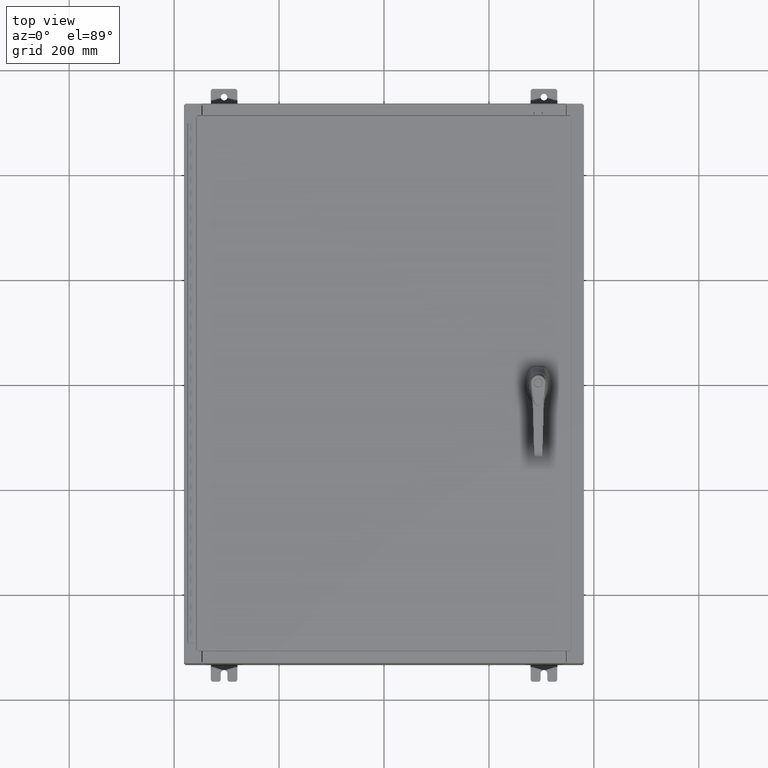
[diagram: clean part render]
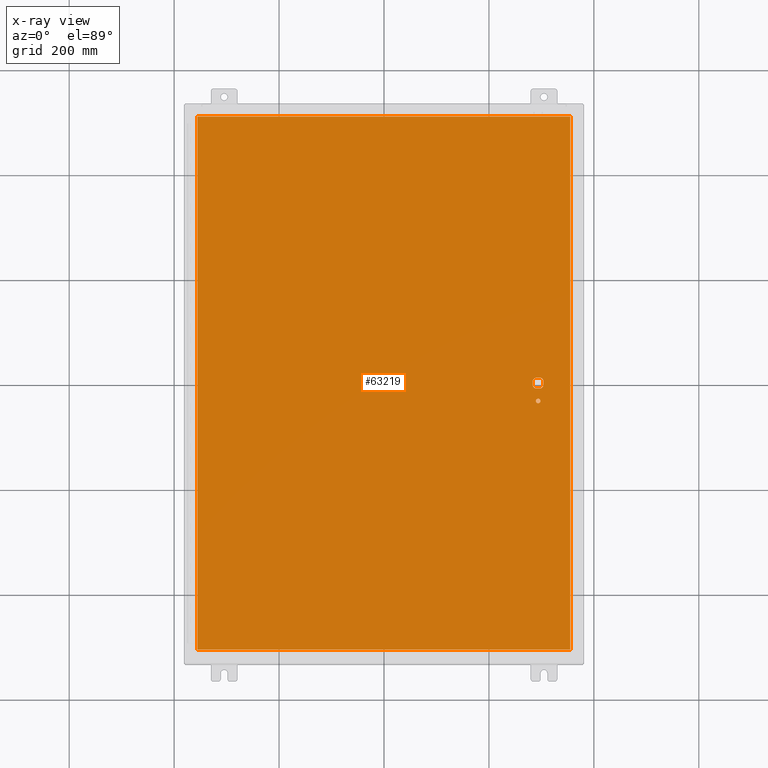
[diagram: x-ray — body ghosted, one internal face saturated and labeled with its STEP entity id]
A machine part, top view, then the same camera in x-ray: the body is ghosted and one INTERNAL B-rep face — a face not visible from any outside direction — is saturated and labeled: STEP entity #63219.
In plain terms, the highlighted planar face has unit normal (0, 0, -1).
Its self-contained STEP definition (entity closure, byte-faithful):
#204 = DIRECTION ( 'NONE',  ( 1.000000000000000000, 0.0000000000000000000, 0.0000000000000000000 ) ) ;
#568 = EDGE_CURVE ( 'NONE', #16407, #96986, #91839, .T. ) ;
#1184 = EDGE_CURVE ( 'NONE', #86407, #72164, #124315, .T. ) ;
#2659 = VERTEX_POINT ( 'NONE', #21447 ) ;
#3316 = VERTEX_POINT ( 'NONE', #12372 ) ;
#3962 = CARTESIAN_POINT ( 'NONE',  ( 11.37777262924369200, 0.4029999999999252000, -0.07470000000000003000 ) ) ;
#5457 = ORIENTED_EDGE ( 'NONE', *, *, #101393, .F. ) ;
#7925 = CARTESIAN_POINT ( 'NONE',  ( -13.99029999999999800, -20.00630000000000700, -0.07470000000000000300 ) ) ;
#10936 = VERTEX_POINT ( 'NONE', #102163 ) ;
#11140 = ORIENTED_EDGE ( 'NONE', *, *, #30361, .T. ) ;
#11514 = ORIENTED_EDGE ( 'NONE', *, *, #568, .F. ) ;
#12372 = CARTESIAN_POINT ( 'NONE',  ( 11.98099999999992900, -0.2002273707563067300, -0.07470000000000003000 ) ) ;
#12664 = VERTEX_POINT ( 'NONE', #68689 ) ;
#12752 = CARTESIAN_POINT ( 'NONE',  ( -13.99029999999999800, 20.00630000000000300, -0.07470000000000000300 ) ) ;
#14031 = DIRECTION ( 'NONE',  ( 0.0000000000000000000, -1.000000000000000000, 0.0000000000000000000 ) ) ;
#15718 = DIRECTION ( 'NONE',  ( -1.000000000000000000, 0.0000000000000000000, 0.0000000000000000000 ) ) ;
#16407 = VERTEX_POINT ( 'NONE', #12752 ) ;
#18367 = DIRECTION ( 'NONE',  ( -1.000000000000000000, -0.0000000000000000000, -0.0000000000000000000 ) ) ;
#19567 = DIRECTION ( 'NONE',  ( 0.0000000000000000000, -1.000000000000000000, 0.0000000000000000000 ) ) ;
#19650 = ORIENTED_EDGE ( 'NONE', *, *, #123649, .T. ) ;
#21447 = CARTESIAN_POINT ( 'NONE',  ( 11.37777262924369200, -0.4029999999999250300, -0.07470000000000003000 ) ) ;
#24222 = ORIENTED_EDGE ( 'NONE', *, *, #79871, .F. ) ;
#25161 = DIRECTION ( 'NONE',  ( 0.0000000000000000000, 0.0000000000000000000, -1.000000000000000000 ) ) ;
#25398 = CARTESIAN_POINT ( 'NONE',  ( 11.57800000000000100, -1.338000000000000100, -0.07470000000000003000 ) ) ;
#26252 = FACE_OUTER_BOUND ( 'NONE', #75893, .T. ) ;
#27329 = CARTESIAN_POINT ( 'NONE',  ( 11.57800000000000100, 0.0000000000000000000, -0.07470000000000003000 ) ) ;
#27339 = AXIS2_PLACEMENT_3D ( 'NONE', #101863, #42645, #111901 ) ;
#28259 = CARTESIAN_POINT ( 'NONE',  ( 11.57800000000000100, 0.0000000000000000000, -0.07470000000000003000 ) ) ;
#30361 = EDGE_CURVE ( 'NONE', #10936, #98670, #70980, .T. ) ;
#30752 = DIRECTION ( 'NONE',  ( -0.0000000000000000000, -0.0000000000000000000, 1.000000000000000000 ) ) ;
#34242 = DIRECTION ( 'NONE',  ( 1.000000000000000000, -0.0000000000000000000, -0.0000000000000000000 ) ) ;
#34939 = VECTOR ( 'NONE', #46800, 39.37007874015748100 ) ;
#35502 = CARTESIAN_POINT ( 'NONE',  ( 11.77822737075631200, 0.4029999999999250300, -0.07470000000000003000 ) ) ;
#35969 = DIRECTION ( 'NONE',  ( -0.0000000000000000000, -0.0000000000000000000, 1.000000000000000000 ) ) ;
#36581 = DIRECTION ( 'NONE',  ( -1.000000000000000000, 0.0000000000000000000, 0.0000000000000000000 ) ) ;
#37365 = DIRECTION ( 'NONE',  ( -1.000000000000000000, -1.776356839400246700E-015, 0.0000000000000000000 ) ) ;
#38276 = DIRECTION ( 'NONE',  ( -1.000000000000000000, -5.329070518200740300E-015, 0.0000000000000000000 ) ) ;
#38372 = CIRCLE ( 'NONE', #27339, 0.4499999999999168000 ) ;
#38773 = VECTOR ( 'NONE', #204, 39.37007874015748100 ) ;
#39703 = VERTEX_POINT ( 'NONE', #35502 ) ;
#40078 = ORIENTED_EDGE ( 'NONE', *, *, #1184, .T. ) ;
#41886 = LINE ( 'NONE', #109226, #38773 ) ;
#42645 = DIRECTION ( 'NONE',  ( -0.0000000000000000000, -0.0000000000000000000, 1.000000000000000000 ) ) ;
#42906 = CARTESIAN_POINT ( 'NONE',  ( -13.99029999999999800, -20.00630000000001000, -0.07469999999999804600 ) ) ;
#46232 = VECTOR ( 'NONE', #18367, 39.37007874015748100 ) ;
#46800 = DIRECTION ( 'NONE',  ( 0.0000000000000000000, 1.000000000000000000, 0.0000000000000000000 ) ) ;
#49101 = LINE ( 'NONE', #95820, #109440 ) ;
#49194 = AXIS2_PLACEMENT_3D ( 'NONE', #95204, #35969, #105169 ) ;
#55286 = ORIENTED_EDGE ( 'NONE', *, *, #126499, .F. ) ;
#56495 = CARTESIAN_POINT ( 'NONE',  ( 11.98099999999992900, 0.2002273707563075900, -0.07470000000000003000 ) ) ;
#57343 = VECTOR ( 'NONE', #34242, 39.37007874015748100 ) ;
#59330 = VECTOR ( 'NONE', #19567, 39.37007874015748100 ) ;
#61135 = CARTESIAN_POINT ( 'NONE',  ( 11.74950000000000300, -1.338000000000000100, -0.07470000000000003000 ) ) ;
#63040 = CIRCLE ( 'NONE', #127858, 0.4499999999999168000 ) ;
#63219 = ADVANCED_FACE ( 'NONE', ( #102147, #26252, #75866 ), #123968, .T. ) ;
#64729 = CARTESIAN_POINT ( 'NONE',  ( 11.40650000000000100, -1.338000000000000100, -0.07470000000000003000 ) ) ;
#68185 = EDGE_CURVE ( 'NONE', #107244, #10936, #38372, .T. ) ;
#68689 = CARTESIAN_POINT ( 'NONE',  ( 11.77822737075631200, -0.4029999999999252000, -0.07470000000000003000 ) ) ;
#68725 = EDGE_LOOP ( 'NONE', ( #19650, #107425, #95922, #86923, #85792, #11140, #118854, #89104 ) ) ;
#69446 = LINE ( 'NONE', #87772, #46232 ) ;
#69961 = VERTEX_POINT ( 'NONE', #112180 ) ;
#70980 = LINE ( 'NONE', #83533, #123684 ) ;
#71188 = ORIENTED_EDGE ( 'NONE', *, *, #92715, .T. ) ;
#71994 = AXIS2_PLACEMENT_3D ( 'NONE', #94009, #25161, #94430 ) ;
#72164 = VERTEX_POINT ( 'NONE', #64729 ) ;
#75046 = EDGE_CURVE ( 'NONE', #77305, #3316, #78522, .T. ) ;
#75789 = EDGE_CURVE ( 'NONE', #98670, #2659, #114042, .T. ) ;
#75866 = FACE_BOUND ( 'NONE', #68725, .T. ) ;
#75893 = EDGE_LOOP ( 'NONE', ( #55286, #5457, #11514, #24222 ) ) ;
#76209 = CARTESIAN_POINT ( 'NONE',  ( 13.99030000000000100, -20.00630000000000300, -0.07470000000000019700 ) ) ;
#76449 = AXIS2_PLACEMENT_3D ( 'NONE', #27329, #96585, #37365 ) ;
#77063 = CIRCLE ( 'NONE', #103689, 0.4499999999999168000 ) ;
#77305 = VERTEX_POINT ( 'NONE', #56495 ) ;
#77708 = EDGE_CURVE ( 'NONE', #2659, #12664, #41886, .T. ) ;
#78522 = LINE ( 'NONE', #124084, #81619 ) ;
#79871 = EDGE_CURVE ( 'NONE', #118958, #16407, #69446, .T. ) ;
#81619 = VECTOR ( 'NONE', #94121, 39.37007874015748100 ) ;
#82081 = EDGE_CURVE ( 'NONE', #39703, #107244, #49101, .T. ) ;
#83533 = CARTESIAN_POINT ( 'NONE',  ( 11.17500000000007500, 0.0000000000000000000, -0.07470000000000003000 ) ) ;
#83679 = LINE ( 'NONE', #42906, #57343 ) ;
#85792 = ORIENTED_EDGE ( 'NONE', *, *, #68185, .T. ) ;
#86407 = VERTEX_POINT ( 'NONE', #61135 ) ;
#86923 = ORIENTED_EDGE ( 'NONE', *, *, #82081, .T. ) ;
#87772 = CARTESIAN_POINT ( 'NONE',  ( 13.99030000000000100, 20.00630000000000700, -0.07469999999999804600 ) ) ;
#89104 = ORIENTED_EDGE ( 'NONE', *, *, #77708, .T. ) ;
#90035 = CARTESIAN_POINT ( 'NONE',  ( 11.57800000000000100, 0.0000000000000000000, -0.07470000000000003000 ) ) ;
#91839 = LINE ( 'NONE', #95821, #59330 ) ;
#92715 = EDGE_CURVE ( 'NONE', #72164, #86407, #105274, .T. ) ;
#94009 = CARTESIAN_POINT ( 'NONE',  ( 0.0000000000000000000, 0.0000000000000000000, -0.07470000000000000300 ) ) ;
#94121 = DIRECTION ( 'NONE',  ( 5.457491617345625000E-015, -1.000000000000000000, 0.0000000000000000000 ) ) ;
#94430 = DIRECTION ( 'NONE',  ( -1.000000000000000000, 0.0000000000000000000, -0.0000000000000000000 ) ) ;
#95204 = CARTESIAN_POINT ( 'NONE',  ( 11.57800000000000100, -1.338000000000000100, -0.07470000000000003000 ) ) ;
#95820 = CARTESIAN_POINT ( 'NONE',  ( 0.0000000000000000000, 0.4029999999999252000, -0.07470000000000003000 ) ) ;
#95821 = CARTESIAN_POINT ( 'NONE',  ( -13.99029999999999800, 20.00630000000000300, -0.07470000000000019700 ) ) ;
#95922 = ORIENTED_EDGE ( 'NONE', *, *, #123066, .T. ) ;
#96585 = DIRECTION ( 'NONE',  ( -0.0000000000000000000, -0.0000000000000000000, 1.000000000000000000 ) ) ;
#96986 = VERTEX_POINT ( 'NONE', #7925 ) ;
#97514 = DIRECTION ( 'NONE',  ( -0.0000000000000000000, -0.0000000000000000000, 1.000000000000000000 ) ) ;
#98670 = VERTEX_POINT ( 'NONE', #126792 ) ;
#99643 = EDGE_LOOP ( 'NONE', ( #40078, #71188 ) ) ;
#99904 = DIRECTION ( 'NONE',  ( -1.000000000000000000, -1.776356839400246700E-015, 0.0000000000000000000 ) ) ;
#101393 = EDGE_CURVE ( 'NONE', #96986, #69961, #83679, .T. ) ;
#101863 = CARTESIAN_POINT ( 'NONE',  ( 11.57800000000000100, 0.0000000000000000000, -0.07470000000000003000 ) ) ;
#102147 = FACE_BOUND ( 'NONE', #99643, .T. ) ;
#102163 = CARTESIAN_POINT ( 'NONE',  ( 11.17500000000007500, 0.2002273707563075900, -0.07470000000000003000 ) ) ;
#103689 = AXIS2_PLACEMENT_3D ( 'NONE', #28259, #97514, #38276 ) ;
#105169 = DIRECTION ( 'NONE',  ( -1.000000000000000000, 0.0000000000000000000, 0.0000000000000000000 ) ) ;
#105274 = CIRCLE ( 'NONE', #49194, 0.1715000000000011500 ) ;
#107244 = VERTEX_POINT ( 'NONE', #3962 ) ;
#107425 = ORIENTED_EDGE ( 'NONE', *, *, #75046, .F. ) ;
#109226 = CARTESIAN_POINT ( 'NONE',  ( 0.0000000000000000000, -0.4029999999999252000, -0.07470000000000003000 ) ) ;
#109440 = VECTOR ( 'NONE', #36581, 39.37007874015748100 ) ;
#109773 = CARTESIAN_POINT ( 'NONE',  ( 13.99030000000000100, 20.00630000000000300, -0.07470000000000000300 ) ) ;
#111901 = DIRECTION ( 'NONE',  ( -1.000000000000000000, -5.329070518200740300E-015, 0.0000000000000000000 ) ) ;
#112180 = CARTESIAN_POINT ( 'NONE',  ( 13.99030000000000100, -20.00630000000000700, -0.07470000000000000300 ) ) ;
#114042 = CIRCLE ( 'NONE', #76449, 0.4499999999999168000 ) ;
#117044 = LINE ( 'NONE', #76209, #34939 ) ;
#118854 = ORIENTED_EDGE ( 'NONE', *, *, #75789, .T. ) ;
#118958 = VERTEX_POINT ( 'NONE', #109773 ) ;
#123066 = EDGE_CURVE ( 'NONE', #77305, #39703, #77063, .T. ) ;
#123649 = EDGE_CURVE ( 'NONE', #12664, #3316, #63040, .T. ) ;
#123684 = VECTOR ( 'NONE', #14031, 39.37007874015748100 ) ;
#123968 = PLANE ( 'NONE',  #71994 ) ;
#124084 = CARTESIAN_POINT ( 'NONE',  ( 11.98099999999992900, 6.538620706741755000E-014, -0.07470000000000003000 ) ) ;
#124315 = CIRCLE ( 'NONE', #127683, 0.1715000000000011500 ) ;
#125652 = DIRECTION ( 'NONE',  ( -0.0000000000000000000, -0.0000000000000000000, 1.000000000000000000 ) ) ;
#126499 = EDGE_CURVE ( 'NONE', #69961, #118958, #117044, .T. ) ;
#126792 = CARTESIAN_POINT ( 'NONE',  ( 11.17500000000007500, -0.2002273707563079800, -0.07470000000000003000 ) ) ;
#127683 = AXIS2_PLACEMENT_3D ( 'NONE', #25398, #125652, #15718 ) ;
#127858 = AXIS2_PLACEMENT_3D ( 'NONE', #90035, #30752, #99904 ) ;